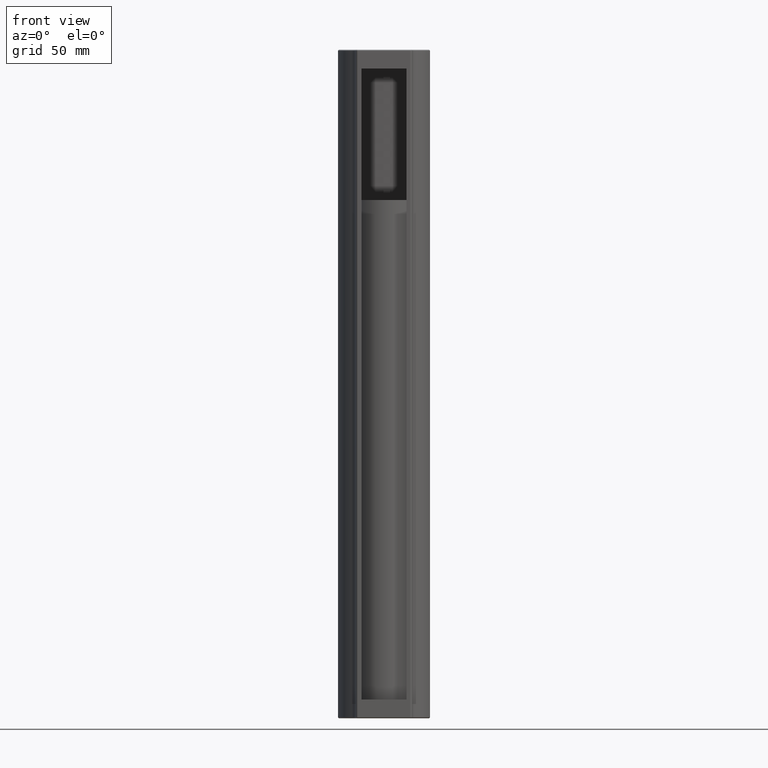
[diagram: clean part render]
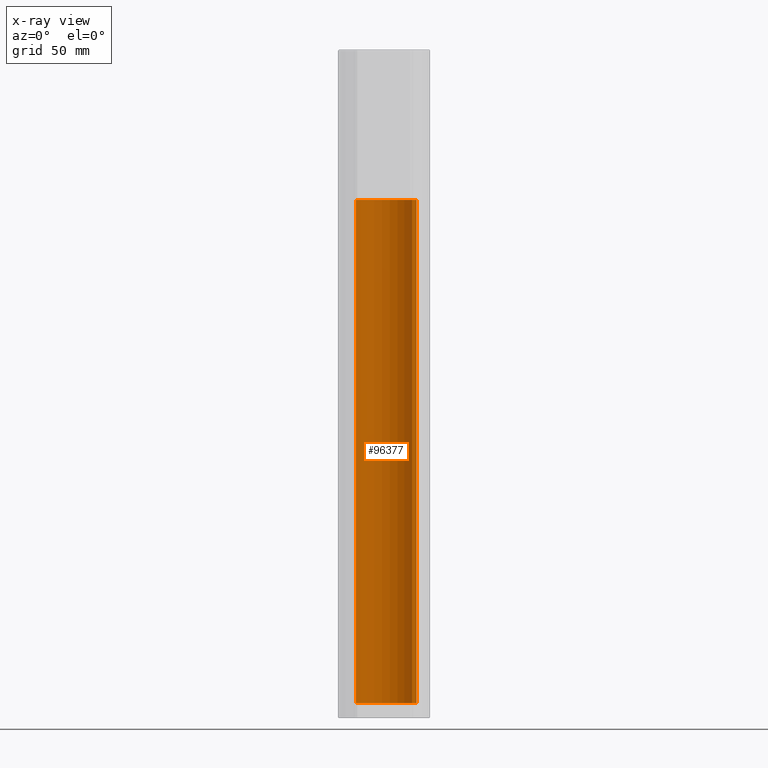
[diagram: x-ray — body ghosted, one internal face saturated and labeled with its STEP entity id]
A machine part, front view, then the same camera in x-ray: the body is ghosted and one INTERNAL B-rep face — a face not visible from any outside direction — is saturated and labeled: STEP entity #96377.
In plain terms, the highlighted cylindrical surface (edge-blend (fillet) strip) has radius 17.5 mm, axis along (-0, 0, -1).
Its self-contained STEP definition (entity closure, byte-faithful):
#2626 = DIRECTION ( 'NONE',  ( -0.0000000000000000000, 0.0000000000000000000, -1.000000000000000000 ) ) ;
#3284 = LINE ( 'NONE', #98429, #87703 ) ;
#6386 = ORIENTED_EDGE ( 'NONE', *, *, #8583, .T. ) ;
#6403 = AXIS2_PLACEMENT_3D ( 'NONE', #57420, #32613, #92017 ) ;
#8583 = EDGE_CURVE ( 'NONE', #34162, #57065, #104747, .T. ) ;
#8597 = DIRECTION ( 'NONE',  ( -0.0000000000000000000, 0.0000000000000000000, -1.000000000000000000 ) ) ;
#12974 = CARTESIAN_POINT ( 'NONE',  ( -22.73435902715755200, -44.62866705207809300, 97.99999999999997200 ) ) ;
#13300 = CARTESIAN_POINT ( 'NONE',  ( -52.58966458559334700, -26.36228454178247200, -170.0000000000000300 ) ) ;
#14123 = CARTESIAN_POINT ( 'NONE',  ( -22.73435902715754900, -44.62866705207809300, 97.99999999999997200 ) ) ;
#24371 = VERTEX_POINT ( 'NONE', #12974 ) ;
#25685 = CARTESIAN_POINT ( 'NONE',  ( -37.66201180637544600, -35.49547579693028600, 97.99999999999997200 ) ) ;
#26760 = CARTESIAN_POINT ( 'NONE',  ( -37.66201180637544600, -35.49547579693028600, 97.99999999999997200 ) ) ;
#27568 = DIRECTION ( 'NONE',  ( -0.8530087302410224200, 0.5218966431513033500, 0.0000000000000000000 ) ) ;
#32613 = DIRECTION ( 'NONE',  ( 0.0000000000000000000, -0.0000000000000000000, 1.000000000000000000 ) ) ;
#34162 = VERTEX_POINT ( 'NONE', #53289 ) ;
#37803 = AXIS2_PLACEMENT_3D ( 'NONE', #26760, #87325, #96354 ) ;
#50370 = LINE ( 'NONE', #14123, #100624 ) ;
#51862 = VERTEX_POINT ( 'NONE', #98601 ) ;
#53289 = CARTESIAN_POINT ( 'NONE',  ( -22.73435902715755200, -44.62866705207809300, -170.0000000000000300 ) ) ;
#57065 = VERTEX_POINT ( 'NONE', #13300 ) ;
#57420 = CARTESIAN_POINT ( 'NONE',  ( -37.66201180637544600, -35.49547579693028600, -170.0000000000000300 ) ) ;
#59853 = CIRCLE ( 'NONE', #104023, 17.50000000000000700 ) ;
#75970 = EDGE_CURVE ( 'NONE', #51862, #57065, #3284, .T. ) ;
#76271 = ORIENTED_EDGE ( 'NONE', *, *, #90037, .T. ) ;
#79650 = ORIENTED_EDGE ( 'NONE', *, *, #100567, .T. ) ;
#83482 = FACE_OUTER_BOUND ( 'NONE', #100087, .T. ) ;
#84134 = DIRECTION ( 'NONE',  ( -0.0000000000000000000, 0.0000000000000000000, -1.000000000000000000 ) ) ;
#86126 = CYLINDRICAL_SURFACE ( 'NONE', #37803, 17.50000000000000700 ) ;
#87325 = DIRECTION ( 'NONE',  ( -0.0000000000000000000, 0.0000000000000000000, -1.000000000000000000 ) ) ;
#87703 = VECTOR ( 'NONE', #2626, 1000.000000000000000 ) ;
#90017 = ORIENTED_EDGE ( 'NONE', *, *, #75970, .F. ) ;
#90037 = EDGE_CURVE ( 'NONE', #51862, #24371, #59853, .T. ) ;
#92017 = DIRECTION ( 'NONE',  ( -0.8530087302410224200, 0.5218966431513033500, 0.0000000000000000000 ) ) ;
#96354 = DIRECTION ( 'NONE',  ( -0.8530087302410224200, 0.5218966431513033500, 0.0000000000000000000 ) ) ;
#96377 = ADVANCED_FACE ( 'NONE', ( #83482 ), #86126, .T. ) ;
#98429 = CARTESIAN_POINT ( 'NONE',  ( -52.58966458559334700, -26.36228454178247200, 97.99999999999997200 ) ) ;
#98601 = CARTESIAN_POINT ( 'NONE',  ( -52.58966458559334700, -26.36228454178247200, 97.99999999999997200 ) ) ;
#100087 = EDGE_LOOP ( 'NONE', ( #76271, #79650, #6386, #90017 ) ) ;
#100567 = EDGE_CURVE ( 'NONE', #24371, #34162, #50370, .T. ) ;
#100624 = VECTOR ( 'NONE', #84134, 1000.000000000000000 ) ;
#104023 = AXIS2_PLACEMENT_3D ( 'NONE', #25685, #8597, #27568 ) ;
#104747 = CIRCLE ( 'NONE', #6403, 17.50000000000000700 ) ;